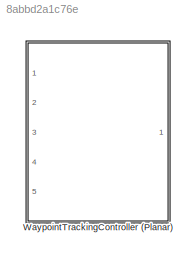
MODEL slx_8abbd2a1c76e
KIND library
CONFIG AbsTol = auto
CONFIG EnableMultiTasking = off
CONFIG FixedStep = auto
CONFIG MaxStep = auto
CONFIG MinStep = auto
CONFIG RelTol = 1e-3
CONFIG SampleTimeConstraint = Unconstrained
CONFIG Solver = VariableStepAuto
CONFIG SolverName = VariableStepAuto
CONFIG StartTime = 0.0
CONFIG StopTime = 10.0
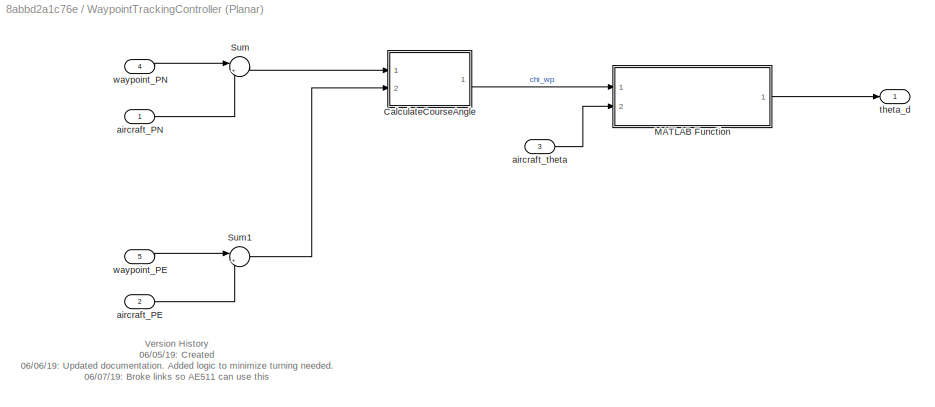
BLOCK [SubSystem] WaypointTrackingController (Planar)
  Ports = [5, 1]
  RequestExecContextInheritance = off
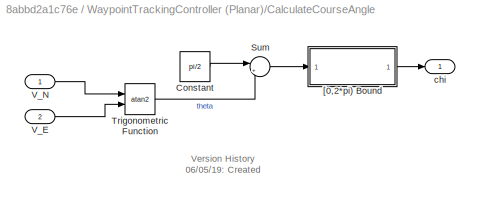
BLOCK [SubSystem] WaypointTrackingController (Planar)/CalculateCourseAngle
  Ports = [2, 1]
  RequestExecContextInheritance = off
BLOCK [Constant] WaypointTrackingController (Planar)/CalculateCourseAngle/Constant
  Value = pi/2
BLOCK [Sum] WaypointTrackingController (Planar)/CalculateCourseAngle/Sum
  IconShape = round
  InputSameDT = off
  Inputs = |+-
  OutDataTypeStr = Inherit: Inherit via internal rule
  Ports = [2, 1]
  SaturateOnIntegerOverflow = off
BLOCK [Trigonometry] WaypointTrackingController (Planar)/CalculateCourseAngle/Trigonometric Function
  Operator = atan2
  Ports = [2, 1]
BLOCK [Inport] WaypointTrackingController (Planar)/CalculateCourseAngle/V_E
  IconDisplay = Port number
  Port = 2
BLOCK [Inport] WaypointTrackingController (Planar)/CalculateCourseAngle/V_N
  IconDisplay = Port number
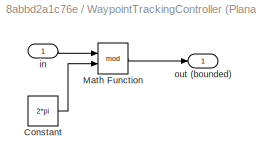
BLOCK [SubSystem] WaypointTrackingController (Planar)/CalculateCourseAngle/[0,2*pi) Bound
  Description = Version History  \n                 \n05/??/05: Created
  Ports = [1, 1]
  RequestExecContextInheritance = off
BLOCK [Constant] WaypointTrackingController (Planar)/CalculateCourseAngle/[0,2*pi) Bound/Constant
  Value = 2*pi
BLOCK [Math] WaypointTrackingController (Planar)/CalculateCourseAngle/[0,2*pi) Bound/Math Function
  Operator = mod
  Ports = [2, 1]
BLOCK [Inport] WaypointTrackingController (Planar)/CalculateCourseAngle/[0,2*pi) Bound/in
  IconDisplay = Port number
BLOCK [Outport] WaypointTrackingController (Planar)/CalculateCourseAngle/[0,2*pi) Bound/out (bounded)
  IconDisplay = Port number
BLOCK [Outport] WaypointTrackingController (Planar)/CalculateCourseAngle/chi
  IconDisplay = Port number
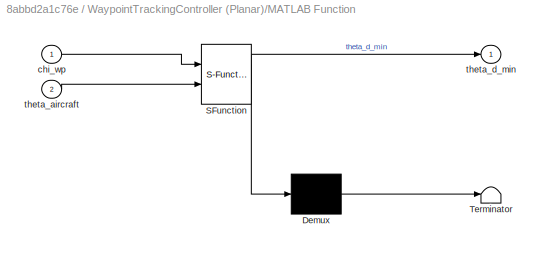
BLOCK [SubSystem] WaypointTrackingController (Planar)/MATLAB Function
  ErrorFcn = Stateflow.Translate.translate
  PermitHierarchicalResolution = ExplicitOnly
  Ports = [2, 1]
  RequestExecContextInheritance = off
  SFBlockType = MATLAB Function
  TreatAsAtomicUnit = on
BLOCK [Demux] WaypointTrackingController (Planar)/MATLAB Function/ Demux 
  Outputs = 1
  Ports = [1, 1]
BLOCK [S-Function] WaypointTrackingController (Planar)/MATLAB Function/ SFunction 
  EnableBusSupport = off
  FunctionName = sf_sfun
  PortCounts = [2 2]
  Ports = [2, 2]
  SFcnIsStateOwnerBlock = off
  SFunctionDeploymentMode = off
  Tag = Stateflow S-Function AE511Library 3
BLOCK [Terminator] WaypointTrackingController (Planar)/MATLAB Function/ Terminator 
BLOCK [Inport] WaypointTrackingController (Planar)/MATLAB Function/chi_wp
  IconDisplay = Port number
BLOCK [Inport] WaypointTrackingController (Planar)/MATLAB Function/theta_aircraft
  IconDisplay = Port number
  Port = 2
BLOCK [Outport] WaypointTrackingController (Planar)/MATLAB Function/theta_d_min
  IconDisplay = Port number
BLOCK [Sum] WaypointTrackingController (Planar)/Sum
  IconShape = round
  InputSameDT = off
  Inputs = |+-
  OutDataTypeStr = Inherit: Inherit via internal rule
  Ports = [2, 1]
  SaturateOnIntegerOverflow = off
BLOCK [Sum] WaypointTrackingController (Planar)/Sum1
  IconShape = round
  InputSameDT = off
  Inputs = |+-
  OutDataTypeStr = Inherit: Inherit via internal rule
  Ports = [2, 1]
  SaturateOnIntegerOverflow = off
BLOCK [Inport] WaypointTrackingController (Planar)/aircraft_PE
  IconDisplay = Port number
  Port = 2
BLOCK [Inport] WaypointTrackingController (Planar)/aircraft_PN
  IconDisplay = Port number
BLOCK [Inport] WaypointTrackingController (Planar)/aircraft_theta
  IconDisplay = Port number
  Port = 3
BLOCK [Outport] WaypointTrackingController (Planar)/theta_d
  IconDisplay = Port number
BLOCK [Inport] WaypointTrackingController (Planar)/waypoint_PE
  IconDisplay = Port number
  Port = 5
BLOCK [Inport] WaypointTrackingController (Planar)/waypoint_PN
  IconDisplay = Port number
  Port = 4
ANNOTATION WaypointTrackingController (Planar): Version History 06/05/19: Created 06/06/19: Updated documentation. Added logic to minimize turning needed. 06/07/19: Broke links so AE511 can use this
ANNOTATION WaypointTrackingController (Planar)/CalculateCourseAngle: Version History 06/05/19: Created
LINE WaypointTrackingController (Planar)/CalculateCourseAngle/Constant:1 -> WaypointTrackingController (Planar)/CalculateCourseAngle/Sum:1
LINE WaypointTrackingController (Planar)/CalculateCourseAngle/Sum:1 -> WaypointTrackingController (Planar)/CalculateCourseAngle/[0,2*pi) Bound:1
LINE WaypointTrackingController (Planar)/CalculateCourseAngle/Trigonometric Function:1 -> WaypointTrackingController (Planar)/CalculateCourseAngle/Sum:2
LINE WaypointTrackingController (Planar)/CalculateCourseAngle/V_E:1 -> WaypointTrackingController (Planar)/CalculateCourseAngle/Trigonometric Function:2
LINE WaypointTrackingController (Planar)/CalculateCourseAngle/V_N:1 -> WaypointTrackingController (Planar)/CalculateCourseAngle/Trigonometric Function:1
LINE WaypointTrackingController (Planar)/CalculateCourseAngle/[0,2*pi) Bound/Constant:1 -> WaypointTrackingController (Planar)/CalculateCourseAngle/[0,2*pi) Bound/Math Function:2
LINE WaypointTrackingController (Planar)/CalculateCourseAngle/[0,2*pi) Bound/Math Function:1 -> WaypointTrackingController (Planar)/CalculateCourseAngle/[0,2*pi) Bound/out (bounded):1
LINE WaypointTrackingController (Planar)/CalculateCourseAngle/[0,2*pi) Bound/in:1 -> WaypointTrackingController (Planar)/CalculateCourseAngle/[0,2*pi) Bound/Math Function:1
LINE WaypointTrackingController (Planar)/CalculateCourseAngle/[0,2*pi) Bound:1 -> WaypointTrackingController (Planar)/CalculateCourseAngle/chi:1
LINE WaypointTrackingController (Planar)/CalculateCourseAngle:1 -> WaypointTrackingController (Planar)/MATLAB Function:1
LINE WaypointTrackingController (Planar)/MATLAB Function:1 -> WaypointTrackingController (Planar)/theta_d:1
LINE WaypointTrackingController (Planar)/Sum1:1 -> WaypointTrackingController (Planar)/CalculateCourseAngle:2
LINE WaypointTrackingController (Planar)/Sum:1 -> WaypointTrackingController (Planar)/CalculateCourseAngle:1
LINE WaypointTrackingController (Planar)/aircraft_PE:1 -> WaypointTrackingController (Planar)/Sum1:2
LINE WaypointTrackingController (Planar)/aircraft_PN:1 -> WaypointTrackingController (Planar)/Sum:2
LINE WaypointTrackingController (Planar)/aircraft_theta:1 -> WaypointTrackingController (Planar)/MATLAB Function:2
LINE WaypointTrackingController (Planar)/waypoint_PE:1 -> WaypointTrackingController (Planar)/Sum1:1
LINE WaypointTrackingController (Planar)/waypoint_PN:1 -> WaypointTrackingController (Planar)/Sum:1
CHART WaypointTrackingController (Planar)/MATLAB Function states=1 transitions=1
  STATE_LABEL 'eML_blk_kernel()'
  STATE_LABEL 'SCRIPT:\nfunction theta_d_min  = fcn(chi_wp, theta_aircraft)\n\n%convert chi to theta\ntheta_d = pi/2 - chi_wp;\n\n%Determine if we need to add or subtract 2*pi to minimize required turning\ntheta_d_p2p = theta_d + 2*pi;\ntheta_d_m2p = theta_d - 2*pi;\n\n%which yields the least error between the current aircraft theta\ne_theta = theta_d - theta_aircraft;\ne_theta_p2p = theta_d_p2p - theta_aircraft;\ne_theta_m2...<+401ch>'
